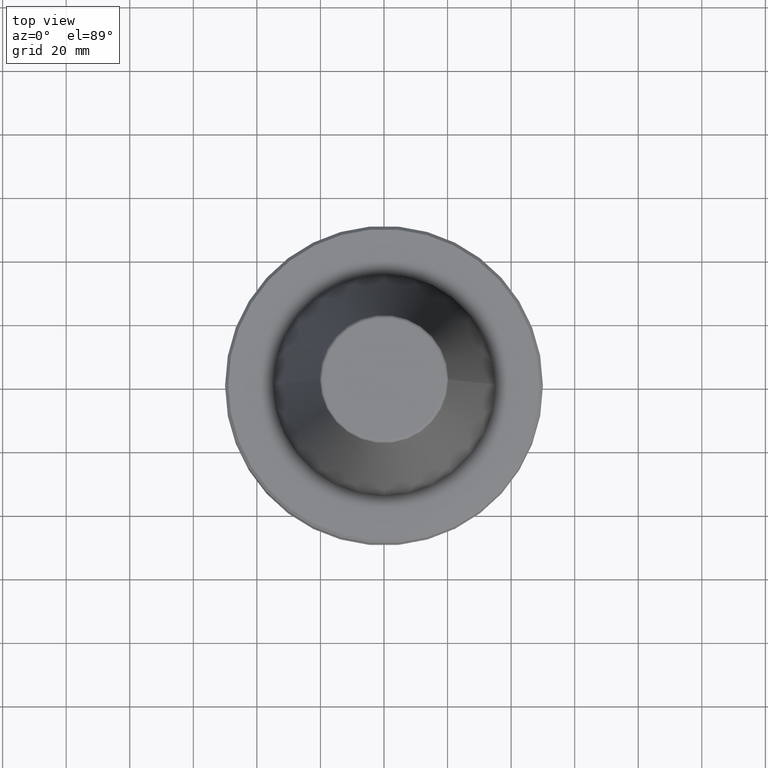
[diagram: clean part render]
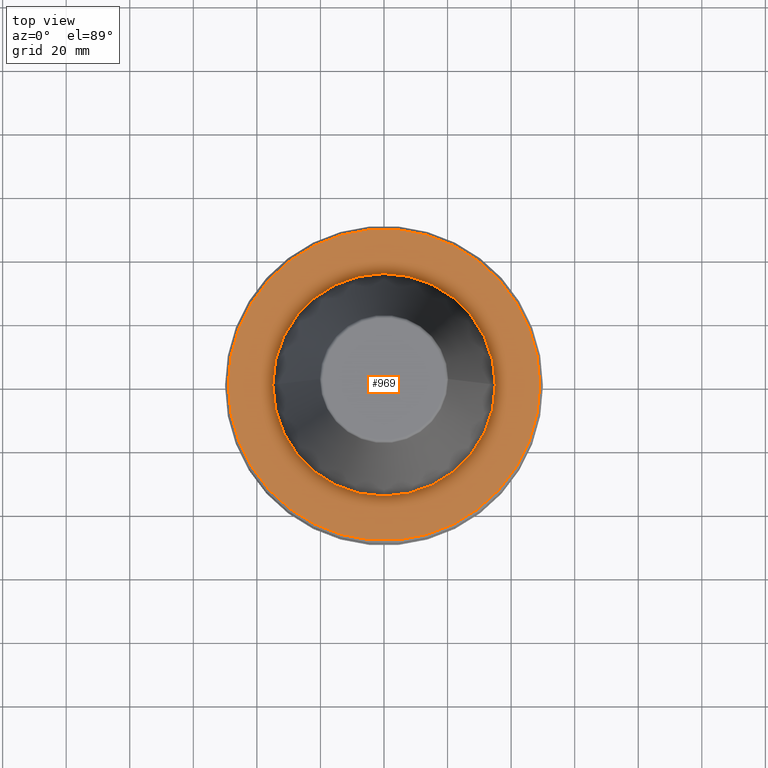
[diagram: same view with one face highlighted and labeled with its STEP entity id]
A machine part, top view. The second image highlights one B-rep face of the part: STEP entity #969.
In plain terms, the highlighted planar face has unit normal (0, 0, -1).
Its self-contained STEP definition (entity closure, byte-faithful):
#17 = ORIENTED_EDGE ( 'NONE', *, *, #800, .F. ) ;
#54 = CIRCLE ( 'NONE', #955, 34.99999999999947400 ) ;
#96 = PLANE ( 'NONE',  #961 ) ;
#135 = AXIS2_PLACEMENT_3D ( 'NONE', #705, #860, #916 ) ;
#138 = CARTESIAN_POINT ( 'NONE',  ( 0.0000000000000000000, 0.0000000000000000000, -3.000000000001334900 ) ) ;
#163 = ORIENTED_EDGE ( 'NONE', *, *, #401, .F. ) ;
#240 = VERTEX_POINT ( 'NONE', #505 ) ;
#245 = DIRECTION ( 'NONE',  ( 1.000000000000000000, 0.0000000000000000000, 0.0000000000000000000 ) ) ;
#250 = FACE_OUTER_BOUND ( 'NONE', #364, .T. ) ;
#277 = CARTESIAN_POINT ( 'NONE',  ( 48.99999999999970900, 6.062001655779363000E-015, -3.000000000001334900 ) ) ;
#289 = VERTEX_POINT ( 'NONE', #481 ) ;
#308 = CARTESIAN_POINT ( 'NONE',  ( -34.99999999999947400, 4.286263797015671800E-015, -3.000000000001446000 ) ) ;
#318 = AXIS2_PLACEMENT_3D ( 'NONE', #138, #613, #609 ) ;
#331 = DIRECTION ( 'NONE',  ( -1.000000000000000000, 0.0000000000000000000, -0.0000000000000000000 ) ) ;
#334 = VERTEX_POINT ( 'NONE', #308 ) ;
#364 = EDGE_LOOP ( 'NONE', ( #384, #419 ) ) ;
#384 = ORIENTED_EDGE ( 'NONE', *, *, #441, .T. ) ;
#401 = EDGE_CURVE ( 'NONE', #240, #334, #945, .T. ) ;
#419 = ORIENTED_EDGE ( 'NONE', *, *, #582, .T. ) ;
#438 = FACE_BOUND ( 'NONE', #761, .T. ) ;
#441 = EDGE_CURVE ( 'NONE', #289, #702, #682, .T. ) ;
#481 = CARTESIAN_POINT ( 'NONE',  ( -48.99999999999970900, 0.0000000000000000000, -3.000000000001334900 ) ) ;
#504 = AXIS2_PLACEMENT_3D ( 'NONE', #727, #621, #245 ) ;
#505 = CARTESIAN_POINT ( 'NONE',  ( 34.99999999999947400, 0.0000000000000000000, -3.000000000001446000 ) ) ;
#582 = EDGE_CURVE ( 'NONE', #702, #289, #791, .T. ) ;
#609 = DIRECTION ( 'NONE',  ( 1.000000000000000000, 0.0000000000000000000, 0.0000000000000000000 ) ) ;
#613 = DIRECTION ( 'NONE',  ( -0.0000000000000000000, -0.0000000000000000000, 1.000000000000000000 ) ) ;
#618 = CARTESIAN_POINT ( 'NONE',  ( 0.0000000000000000000, 48.99999999999970900, -3.000000000001334900 ) ) ;
#621 = DIRECTION ( 'NONE',  ( -0.0000000000000000000, -0.0000000000000000000, 1.000000000000000000 ) ) ;
#682 = CIRCLE ( 'NONE', #135, 48.99999999999970900 ) ;
#702 = VERTEX_POINT ( 'NONE', #277 ) ;
#705 = CARTESIAN_POINT ( 'NONE',  ( 0.0000000000000000000, 0.0000000000000000000, -3.000000000001334900 ) ) ;
#727 = CARTESIAN_POINT ( 'NONE',  ( 0.0000000000000000000, 0.0000000000000000000, -3.000000000001334900 ) ) ;
#761 = EDGE_LOOP ( 'NONE', ( #163, #17 ) ) ;
#788 = DIRECTION ( 'NONE',  ( -0.0000000000000000000, -0.0000000000000000000, 1.000000000000000000 ) ) ;
#791 = CIRCLE ( 'NONE', #318, 48.99999999999970900 ) ;
#800 = EDGE_CURVE ( 'NONE', #334, #240, #54, .T. ) ;
#818 = CARTESIAN_POINT ( 'NONE',  ( 0.0000000000000000000, 0.0000000000000000000, -3.000000000001334900 ) ) ;
#860 = DIRECTION ( 'NONE',  ( -0.0000000000000000000, -0.0000000000000000000, 1.000000000000000000 ) ) ;
#867 = DIRECTION ( 'NONE',  ( 1.000000000000000000, 0.0000000000000000000, 0.0000000000000000000 ) ) ;
#892 = DIRECTION ( 'NONE',  ( 0.0000000000000000000, 0.0000000000000000000, -1.000000000000000000 ) ) ;
#916 = DIRECTION ( 'NONE',  ( 1.000000000000000000, 0.0000000000000000000, 0.0000000000000000000 ) ) ;
#945 = CIRCLE ( 'NONE', #504, 34.99999999999947400 ) ;
#955 = AXIS2_PLACEMENT_3D ( 'NONE', #818, #788, #867 ) ;
#961 = AXIS2_PLACEMENT_3D ( 'NONE', #618, #892, #331 ) ;
#969 = ADVANCED_FACE ( 'NONE', ( #438, #250 ), #96, .F. ) ;